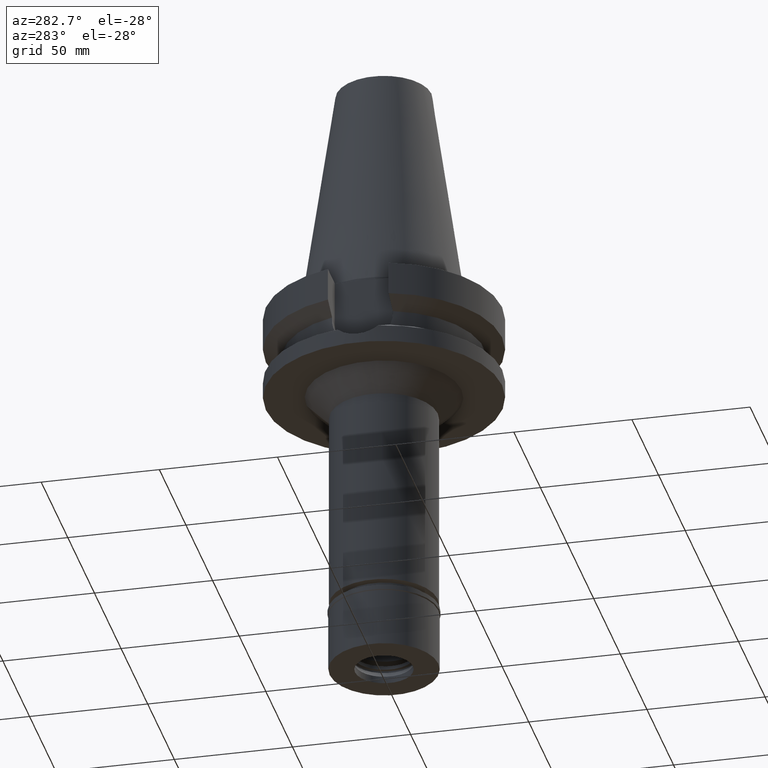
[diagram: clean part render]
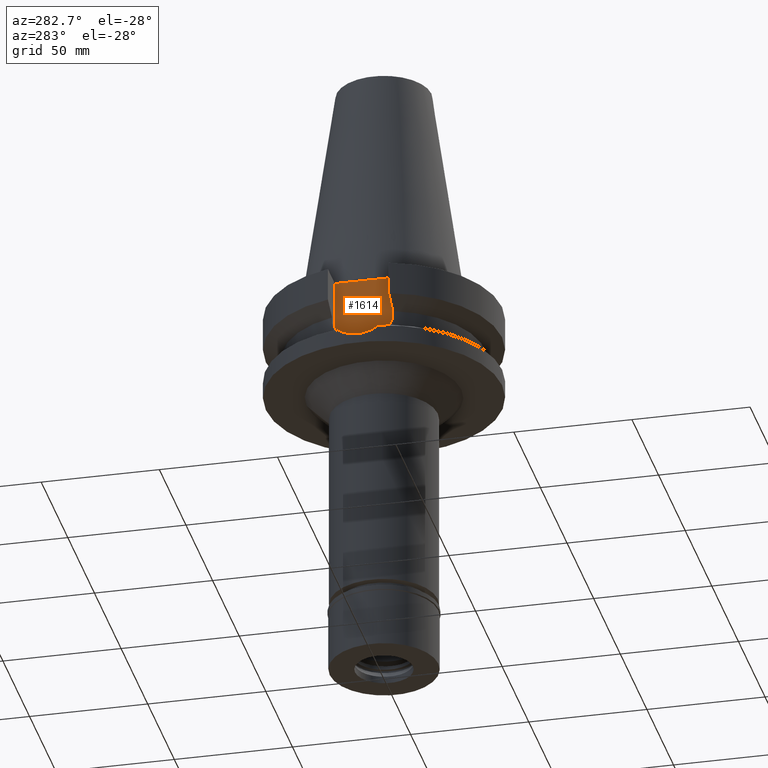
[diagram: same view with one face highlighted and labeled with its STEP entity id]
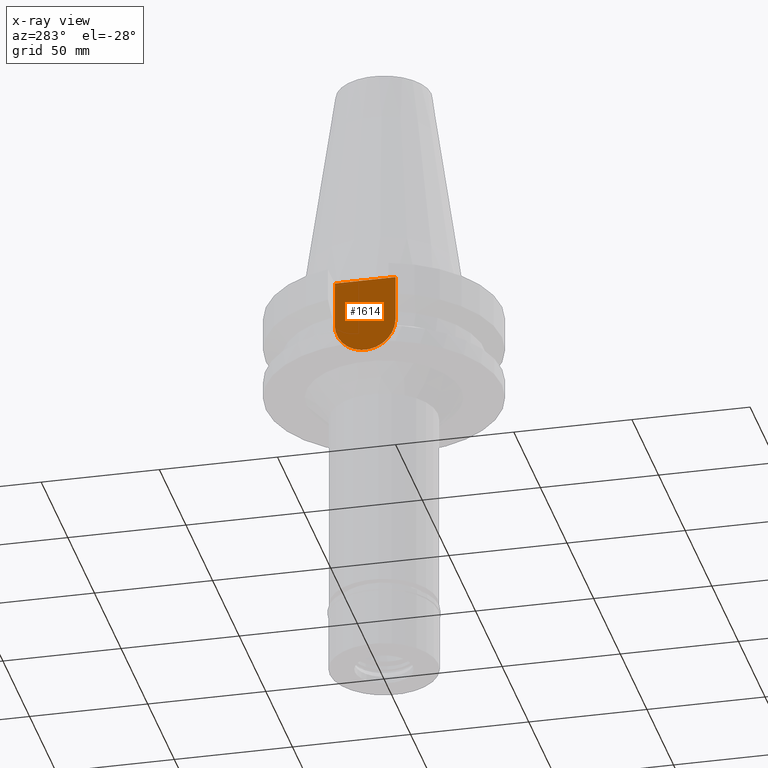
[diagram: x-ray of the same camera — body ghosted, the highlighted face saturated]
A machine part, auxiliary view. The second image highlights one B-rep face of the part: STEP entity #1614.
The next image is the same camera in x-ray: the body ghosted, the highlighted face saturated — about 0% of this face is hidden behind the body in this view.
In plain terms, the highlighted planar face has unit normal (-1, 0, 0).
Its self-contained STEP definition (entity closure, byte-faithful):
#20 = CIRCLE ( 'NONE', #1063, 12.84999999999999964 ) ;
#98 = VERTEX_POINT ( 'NONE', #2413 ) ;
#285 = CARTESIAN_POINT ( 'NONE',  ( -35.39999999999999858, 12.84999999999999964, -21.14999999999999858 ) ) ;
#290 = ORIENTED_EDGE ( 'NONE', *, *, #739, .F. ) ;
#314 = LINE ( 'NONE', #285, #1170 ) ;
#329 = DIRECTION ( 'NONE',  ( 0.0000000000000000000, 1.000000000000000000, 0.0000000000000000000 ) ) ;
#469 = VECTOR ( 'NONE', #329, 1000.000000000000000 ) ;
#544 = CARTESIAN_POINT ( 'NONE',  ( -35.39999999999999858, 12.84999999999999964, -21.14999999999999858 ) ) ;
#551 = EDGE_CURVE ( 'NONE', #2010, #1768, #20, .T. ) ;
#679 = EDGE_CURVE ( 'NONE', #98, #1190, #2926, .T. ) ;
#739 = EDGE_CURVE ( 'NONE', #1768, #1190, #314, .T. ) ;
#821 = CARTESIAN_POINT ( 'NONE',  ( -35.39999999999999858, -12.84999999999999964, -1.500000000000000000 ) ) ;
#1025 = DIRECTION ( 'NONE',  ( 0.0000000000000000000, 0.0000000000000000000, 1.000000000000000000 ) ) ;
#1063 = AXIS2_PLACEMENT_3D ( 'NONE', #2205, #3119, #1668 ) ;
#1147 = EDGE_LOOP ( 'NONE', ( #290, #3139, #1442, #2326 ) ) ;
#1170 = VECTOR ( 'NONE', #1025, 1000.000000000000000 ) ;
#1190 = VERTEX_POINT ( 'NONE', #2955 ) ;
#1212 = CARTESIAN_POINT ( 'NONE',  ( -35.39999999999999858, 2.015768631397000034E-14, 0.0000000000000000000 ) ) ;
#1260 = DIRECTION ( 'NONE',  ( -1.000000000000000000, 0.0000000000000000000, 0.0000000000000000000 ) ) ;
#1326 = LINE ( 'NONE', #1619, #1330 ) ;
#1330 = VECTOR ( 'NONE', #2316, 1000.000000000000000 ) ;
#1442 = ORIENTED_EDGE ( 'NONE', *, *, #1456, .F. ) ;
#1456 = EDGE_CURVE ( 'NONE', #98, #2010, #1326, .T. ) ;
#1614 = ADVANCED_FACE ( 'NONE', ( #2378 ), #2252, .T. ) ;
#1619 = CARTESIAN_POINT ( 'NONE',  ( -35.39999999999999858, -12.84999999999999964, -1.500000000000000000 ) ) ;
#1668 = DIRECTION ( 'NONE',  ( 0.0000000000000000000, -1.000000000000000000, 0.0000000000000000000 ) ) ;
#1768 = VERTEX_POINT ( 'NONE', #544 ) ;
#2010 = VERTEX_POINT ( 'NONE', #2855 ) ;
#2205 = CARTESIAN_POINT ( 'NONE',  ( -35.39999999999999858, 1.497743035356999952E-14, -21.14999999999999858 ) ) ;
#2252 = PLANE ( 'NONE',  #2265 ) ;
#2265 = AXIS2_PLACEMENT_3D ( 'NONE', #1212, #1260, #2953 ) ;
#2316 = DIRECTION ( 'NONE',  ( 0.0000000000000000000, 0.0000000000000000000, -1.000000000000000000 ) ) ;
#2326 = ORIENTED_EDGE ( 'NONE', *, *, #679, .T. ) ;
#2378 = FACE_OUTER_BOUND ( 'NONE', #1147, .T. ) ;
#2413 = CARTESIAN_POINT ( 'NONE',  ( -35.39999999999999858, -12.84999999999999964, -1.500000000000000000 ) ) ;
#2855 = CARTESIAN_POINT ( 'NONE',  ( -35.39999999999999858, -12.84999999999999964, -21.14999999999999858 ) ) ;
#2926 = LINE ( 'NONE', #821, #469 ) ;
#2953 = DIRECTION ( 'NONE',  ( 0.0000000000000000000, 0.0000000000000000000, 1.000000000000000000 ) ) ;
#2955 = CARTESIAN_POINT ( 'NONE',  ( -35.39999999999999858, 12.84999999999999964, -1.500000000000000000 ) ) ;
#3119 = DIRECTION ( 'NONE',  ( 1.000000000000000000, 0.0000000000000000000, 0.0000000000000000000 ) ) ;
#3139 = ORIENTED_EDGE ( 'NONE', *, *, #551, .F. ) ;